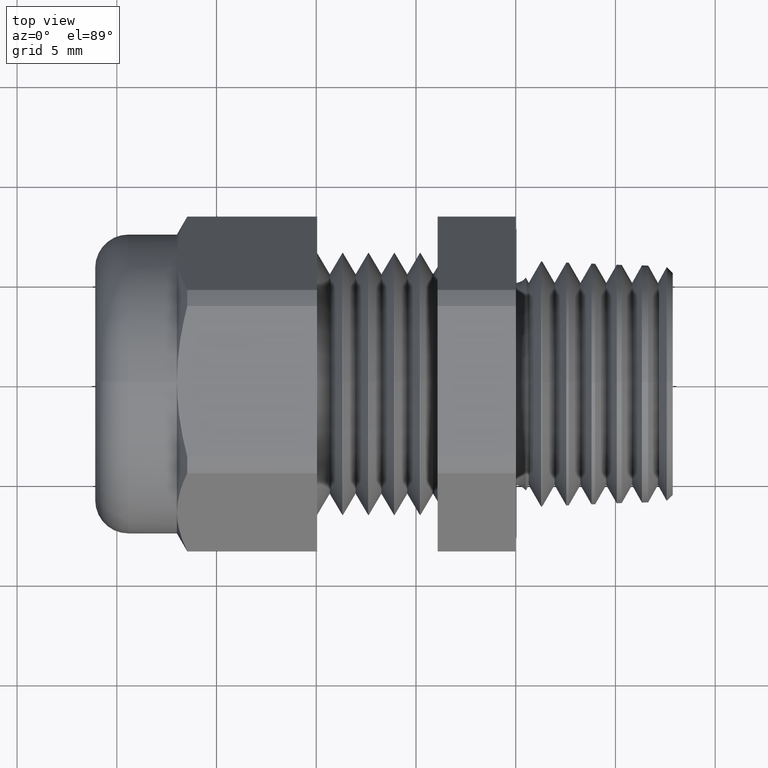
[diagram: clean part render]
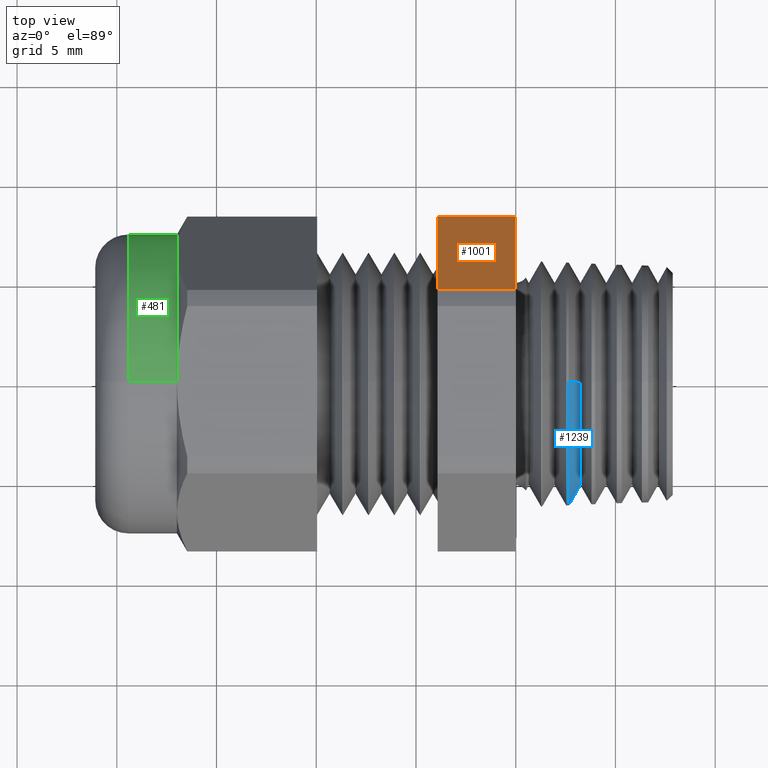
[diagram: same view with three faces highlighted in distinct colors, each labeled with its STEP entity id]
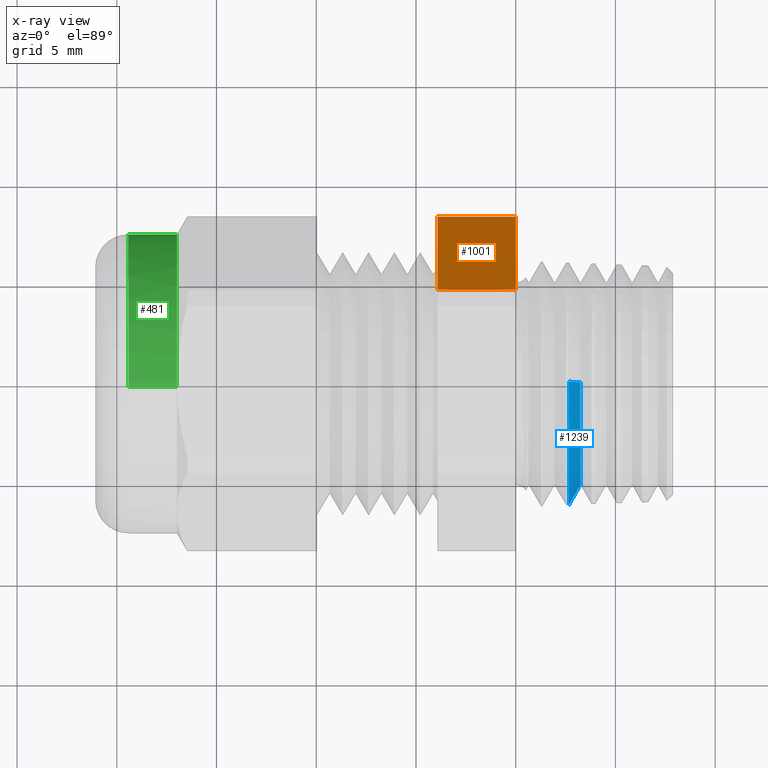
[diagram: x-ray of the same camera — body ghosted, the three highlighted faces saturated]
A machine part, top view with three faces highlighted in distinct colors.
The next image is the same camera in x-ray (body ghosted, the three faces saturated) — at least one of them is partly hidden behind the body in this view.
Their STEP definitions:

[orange] entity #1001 — the highlighted planar face has unit normal (0, 0.866, 0.5).
#581 = VERTEX_POINT ( 'NONE', #2368 ) ;
#622 = VERTEX_POINT ( 'NONE', #2282 ) ;
#627 = VERTEX_POINT ( 'NONE', #2341 ) ;
#630 = EDGE_CURVE ( 'NONE', #627, #1324, #2340, .T. ) ;
#652 = EDGE_CURVE ( 'NONE', #622, #581, #2385, .T. ) ;
#837 = ORIENTED_EDGE ( 'NONE', *, *, #630, .T. ) ;
#838 = ORIENTED_EDGE ( 'NONE', *, *, #857, .T. ) ;
#839 = ORIENTED_EDGE ( 'NONE', *, *, #652, .F. ) ;
#840 = ORIENTED_EDGE ( 'NONE', *, *, #845, .F. ) ;
#845 = EDGE_CURVE ( 'NONE', #627, #622, #2824, .T. ) ;
#857 = EDGE_CURVE ( 'NONE', #1324, #581, #2746, .T. ) ;
#1001 = ADVANCED_FACE ( 'NONE', ( #2949 ), #2948, .T. ) ;
#1002 = EDGE_LOOP ( 'NONE', ( #837, #838, #839, #840 ) ) ;
#1324 = VERTEX_POINT ( 'NONE', #3387 ) ;
#2282 = CARTESIAN_POINT ( 'NONE',  ( 0.0000000000000000000, 0.3298736633726285800, 0.01864205495973442900 ) ) ;
#2337 = DIRECTION ( 'NONE',  ( 0.0000000000000000000, -0.4999999999999998900, 0.8660254037844386000 ) ) ;
#2338 = VECTOR ( 'NONE', #2337, 39.37007874015748900 ) ;
#2339 = CARTESIAN_POINT ( 'NONE',  ( -0.1542288557213930500, 0.3204024941164092500, 0.03504660131859056700 ) ) ;
#2340 = LINE ( 'NONE', #2339, #2338 ) ;
#2341 = CARTESIAN_POINT ( 'NONE',  ( -0.1542288557213930500, 0.3298736633726285800, 0.01864205495973442900 ) ) ;
#2368 = CARTESIAN_POINT ( 'NONE',  ( 0.0000000000000000000, 0.1810813248601899900, 0.2763579450402654500 ) ) ;
#2382 = DIRECTION ( 'NONE',  ( 0.0000000000000000000, -0.4999999999999998900, 0.8660254037844386000 ) ) ;
#2383 = VECTOR ( 'NONE', #2382, 39.37007874015748900 ) ;
#2384 = CARTESIAN_POINT ( 'NONE',  ( 0.0000000000000000000, 0.3298736633726285800, 0.01864205495973441200 ) ) ;
#2385 = LINE ( 'NONE', #2384, #2383 ) ;
#2743 = DIRECTION ( 'NONE',  ( 1.000000000000000000, 0.0000000000000000000, 0.0000000000000000000 ) ) ;
#2744 = VECTOR ( 'NONE', #2743, 39.37007874015748100 ) ;
#2745 = CARTESIAN_POINT ( 'NONE',  ( -1.612607445236302800, 0.1810813248601899900, 0.2763579450402654500 ) ) ;
#2746 = LINE ( 'NONE', #2745, #2744 ) ;
#2821 = DIRECTION ( 'NONE',  ( 1.000000000000000000, 0.0000000000000000000, 0.0000000000000000000 ) ) ;
#2822 = VECTOR ( 'NONE', #2821, 39.37007874015748100 ) ;
#2823 = CARTESIAN_POINT ( 'NONE',  ( -1.612607445236302800, 0.3298736633726285800, 0.01864205495973442900 ) ) ;
#2824 = LINE ( 'NONE', #2823, #2822 ) ;
#2944 = DIRECTION ( 'NONE',  ( 0.0000000000000000000, -0.4999999999999998900, 0.8660254037844386000 ) ) ;
#2945 = DIRECTION ( 'NONE',  ( 0.0000000000000000000, 0.8660254037844387100, 0.4999999999999999400 ) ) ;
#2946 = CARTESIAN_POINT ( 'NONE',  ( -1.612607445236302800, 0.3298736633726285800, 0.01864205495973441200 ) ) ;
#2947 = AXIS2_PLACEMENT_3D ( 'NONE', #2946, #2945, #2944 ) ;
#2948 = PLANE ( 'NONE',  #2947 ) ;
#2949 = FACE_OUTER_BOUND ( 'NONE', #1002, .T. ) ;
#3387 = CARTESIAN_POINT ( 'NONE',  ( -0.1542288557213930500, 0.1810813248601899900, 0.2763579450402654500 ) ) ;

[blue] entity #1239 — the highlighted conical surface has half-angle 60 deg.
#168 = VERTEX_POINT ( 'NONE', #1451 ) ;
#183 = EDGE_CURVE ( 'NONE', #238, #413, #1522, .T. ) ;
#237 = VERTEX_POINT ( 'NONE', #1691 ) ;
#238 = VERTEX_POINT ( 'NONE', #1690 ) ;
#413 = VERTEX_POINT ( 'NONE', #1803 ) ;
#457 = EDGE_CURVE ( 'NONE', #237, #168, #2106, .T. ) ;
#737 = EDGE_CURVE ( 'NONE', #168, #413, #2507, .T. ) ;
#1239 = ADVANCED_FACE ( 'NONE', ( #3192 ), #3108, .T. ) ;
#1240 = EDGE_LOOP ( 'NONE', ( #1301, #1302, #1304, #1305 ) ) ;
#1301 = ORIENTED_EDGE ( 'NONE', *, *, #183, .F. ) ;
#1302 = ORIENTED_EDGE ( 'NONE', *, *, #1303, .T. ) ;
#1303 = EDGE_CURVE ( 'NONE', #238, #237, #3424, .T. ) ;
#1304 = ORIENTED_EDGE ( 'NONE', *, *, #457, .T. ) ;
#1305 = ORIENTED_EDGE ( 'NONE', *, *, #737, .T. ) ;
#1451 = CARTESIAN_POINT ( 'NONE',  ( 0.1046376705225984200, 0.0000000000000000000, 0.2404314206412331300 ) ) ;
#1519 = DIRECTION ( 'NONE',  ( -0.4999999999999868400, 1.060575238724916000E-016, -0.8660254037844461500 ) ) ;
#1520 = VECTOR ( 'NONE', #1519, 39.37007874015748100 ) ;
#1521 = CARTESIAN_POINT ( 'NONE',  ( 0.1020000000000002800, 3.000384657911014900E-017, -0.2450000000000000000 ) ) ;
#1522 = LINE ( 'NONE', #1521, #1520 ) ;
#1690 = CARTESIAN_POINT ( 'NONE',  ( 0.1276709089326036100, 2.700150873774371800E-017, -0.2005366814522557300 ) ) ;
#1691 = CARTESIAN_POINT ( 'NONE',  ( 0.1276709089326036100, 0.0000000000000000000, 0.2005366814522557300 ) ) ;
#1803 = CARTESIAN_POINT ( 'NONE',  ( 0.1046376705225984200, 2.945722225192773400E-017, -0.2404314206412331300 ) ) ;
#2103 = DIRECTION ( 'NONE',  ( -0.4999999999999868400, 0.0000000000000000000, 0.8660254037844461500 ) ) ;
#2104 = VECTOR ( 'NONE', #2103, 39.37007874015748100 ) ;
#2105 = CARTESIAN_POINT ( 'NONE',  ( 0.1020000000000002800, 0.0000000000000000000, 0.2450000000000000000 ) ) ;
#2106 = LINE ( 'NONE', #2105, #2104 ) ;
#2507 = CIRCLE ( 'NONE', #2563, 0.2404314206412331300 ) ;
#2560 = DIRECTION ( 'NONE',  ( 0.0000000000000000000, 0.0000000000000000000, 1.000000000000000000 ) ) ;
#2561 = DIRECTION ( 'NONE',  ( 1.000000000000000000, 0.0000000000000000000, 0.0000000000000000000 ) ) ;
#2562 = CARTESIAN_POINT ( 'NONE',  ( 0.1046376705225984200, 0.0000000000000000000, 0.0000000000000000000 ) ) ;
#2563 = AXIS2_PLACEMENT_3D ( 'NONE', #2562, #2561, #2560 ) ;
#3105 = DIRECTION ( 'NONE',  ( 0.0000000000000000000, 0.0000000000000000000, 1.000000000000000000 ) ) ;
#3106 = DIRECTION ( 'NONE',  ( -1.000000000000000000, 0.0000000000000000000, 0.0000000000000000000 ) ) ;
#3107 = AXIS2_PLACEMENT_3D ( 'NONE', #3191, #3106, #3105 ) ;
#3108 = CONICAL_SURFACE ( 'NONE', #3107, 0.2450000000000000000, 1.047197551196613000 ) ;
#3191 = CARTESIAN_POINT ( 'NONE',  ( 0.1020000000000002800, 0.0000000000000000000, 0.0000000000000000000 ) ) ;
#3192 = FACE_OUTER_BOUND ( 'NONE', #1240, .T. ) ;
#3421 = DIRECTION ( 'NONE',  ( 0.0000000000000000000, 0.0000000000000000000, 1.000000000000000000 ) ) ;
#3422 = DIRECTION ( 'NONE',  ( -1.000000000000000000, 0.0000000000000000000, 0.0000000000000000000 ) ) ;
#3423 = AXIS2_PLACEMENT_3D ( 'NONE', #3427, #3422, #3421 ) ;
#3424 = CIRCLE ( 'NONE', #3423, 0.2005366814522557300 ) ;
#3427 = CARTESIAN_POINT ( 'NONE',  ( 0.1276709089326036100, 0.0000000000000000000, 0.0000000000000000000 ) ) ;

[green] entity #481 — the highlighted cylindrical surface (partial cylindrical patch) has radius 7.493 mm, axis along (-1, 0, 0).
#304 = ORIENTED_EDGE ( 'NONE', *, *, #305, .T. ) ;
#305 = EDGE_CURVE ( 'NONE', #401, #312, #1950, .T. ) ;
#306 = ORIENTED_EDGE ( 'NONE', *, *, #391, .T. ) ;
#307 = VERTEX_POINT ( 'NONE', #1946 ) ;
#308 = VERTEX_POINT ( 'NONE', #1945 ) ;
#309 = ORIENTED_EDGE ( 'NONE', *, *, #310, .T. ) ;
#310 = EDGE_CURVE ( 'NONE', #308, #400, #1944, .T. ) ;
#312 = VERTEX_POINT ( 'NONE', #1939 ) ;
#315 = EDGE_LOOP ( 'NONE', ( #398, #304, #306, #402, #404, #309 ) ) ;
#391 = EDGE_CURVE ( 'NONE', #312, #485, #1847, .T. ) ;
#398 = ORIENTED_EDGE ( 'NONE', *, *, #399, .T. ) ;
#399 = EDGE_CURVE ( 'NONE', #400, #401, #1830, .T. ) ;
#400 = VERTEX_POINT ( 'NONE', #1825 ) ;
#401 = VERTEX_POINT ( 'NONE', #1824 ) ;
#402 = ORIENTED_EDGE ( 'NONE', *, *, #403, .F. ) ;
#403 = EDGE_CURVE ( 'NONE', #307, #485, #1823, .T. ) ;
#404 = ORIENTED_EDGE ( 'NONE', *, *, #405, .T. ) ;
#405 = EDGE_CURVE ( 'NONE', #307, #308, #1819, .T. ) ;
#481 = ADVANCED_FACE ( 'NONE', ( #2270 ), #2269, .T. ) ;
#485 = VERTEX_POINT ( 'NONE', #2255 ) ;
#1815 = DIRECTION ( 'NONE',  ( 0.0000000000000000000, 0.0000000000000000000, 1.000000000000000000 ) ) ;
#1816 = DIRECTION ( 'NONE',  ( -1.000000000000000000, 0.0000000000000000000, 0.0000000000000000000 ) ) ;
#1817 = CARTESIAN_POINT ( 'NONE',  ( -0.6687499999999999600, 0.0000000000000000000, 0.0000000000000000000 ) ) ;
#1818 = AXIS2_PLACEMENT_3D ( 'NONE', #1817, #1816, #1815 ) ;
#1819 = CIRCLE ( 'NONE', #1818, 0.2949999999999998700 ) ;
#1820 = DIRECTION ( 'NONE',  ( -1.000000000000000000, 0.0000000000000000000, 0.0000000000000000000 ) ) ;
#1821 = VECTOR ( 'NONE', #1820, 39.37007874015748100 ) ;
#1822 = CARTESIAN_POINT ( 'NONE',  ( -0.7238591030180623300, 0.0000000000000000000, 0.2949999999999998200 ) ) ;
#1823 = LINE ( 'NONE', #1822, #1821 ) ;
#1824 = CARTESIAN_POINT ( 'NONE',  ( -0.6687499999999999600, 0.0000000000000000000, -0.2949999999999998700 ) ) ;
#1825 = CARTESIAN_POINT ( 'NONE',  ( -0.6687499999999999600, 0.2554774941164093000, -0.1474999999999999400 ) ) ;
#1826 = DIRECTION ( 'NONE',  ( 0.0000000000000000000, 0.0000000000000000000, 1.000000000000000000 ) ) ;
#1827 = DIRECTION ( 'NONE',  ( -1.000000000000000000, 0.0000000000000000000, 0.0000000000000000000 ) ) ;
#1828 = CARTESIAN_POINT ( 'NONE',  ( -0.6687499999999999600, 0.0000000000000000000, 0.0000000000000000000 ) ) ;
#1829 = AXIS2_PLACEMENT_3D ( 'NONE', #1828, #1827, #1826 ) ;
#1830 = CIRCLE ( 'NONE', #1829, 0.2949999999999998700 ) ;
#1844 = DIRECTION ( 'NONE',  ( 0.0000000000000000000, 0.0000000000000000000, -1.000000000000000000 ) ) ;
#1845 = DIRECTION ( 'NONE',  ( 1.000000000000000000, 0.0000000000000000000, 0.0000000000000000000 ) ) ;
#1846 = AXIS2_PLACEMENT_3D ( 'NONE', #1853, #1845, #1844 ) ;
#1847 = CIRCLE ( 'NONE', #1846, 0.2949999999999998200 ) ;
#1853 = CARTESIAN_POINT ( 'NONE',  ( -0.7645999999999999500, 0.0000000000000000000, 0.0000000000000000000 ) ) ;
#1939 = CARTESIAN_POINT ( 'NONE',  ( -0.7645999999999999500, 3.612708057484689500E-017, -0.2949999999999998200 ) ) ;
#1940 = DIRECTION ( 'NONE',  ( 0.0000000000000000000, 0.0000000000000000000, 1.000000000000000000 ) ) ;
#1941 = DIRECTION ( 'NONE',  ( -1.000000000000000000, 0.0000000000000000000, 0.0000000000000000000 ) ) ;
#1942 = CARTESIAN_POINT ( 'NONE',  ( -0.6687499999999999600, 0.0000000000000000000, 0.0000000000000000000 ) ) ;
#1943 = AXIS2_PLACEMENT_3D ( 'NONE', #1942, #1941, #1940 ) ;
#1944 = CIRCLE ( 'NONE', #1943, 0.2949999999999998700 ) ;
#1945 = CARTESIAN_POINT ( 'NONE',  ( -0.6687499999999999600, 0.2554774941164093000, 0.1474999999999999900 ) ) ;
#1946 = CARTESIAN_POINT ( 'NONE',  ( -0.6687499999999999600, 0.0000000000000000000, 0.2949999999999998700 ) ) ;
#1947 = DIRECTION ( 'NONE',  ( -1.000000000000000000, 0.0000000000000000000, 0.0000000000000000000 ) ) ;
#1948 = VECTOR ( 'NONE', #1947, 39.37007874015748100 ) ;
#1949 = CARTESIAN_POINT ( 'NONE',  ( -0.7238591030180623300, 3.612708057484689500E-017, -0.2949999999999998200 ) ) ;
#1950 = LINE ( 'NONE', #1949, #1948 ) ;
#2255 = CARTESIAN_POINT ( 'NONE',  ( -0.7645999999999999500, 0.0000000000000000000, 0.2949999999999998200 ) ) ;
#2264 = DIRECTION ( 'NONE',  ( 0.0000000000000000000, 0.0000000000000000000, 1.000000000000000000 ) ) ;
#2265 = DIRECTION ( 'NONE',  ( -1.000000000000000000, 0.0000000000000000000, 0.0000000000000000000 ) ) ;
#2266 = CARTESIAN_POINT ( 'NONE',  ( -0.7238591030180623300, 0.0000000000000000000, 0.0000000000000000000 ) ) ;
#2267 = AXIS2_PLACEMENT_3D ( 'NONE', #2266, #2265, #2264 ) ;
#2269 = CYLINDRICAL_SURFACE ( 'NONE', #2267, 0.2949999999999998200 ) ;
#2270 = FACE_OUTER_BOUND ( 'NONE', #315, .T. ) ;